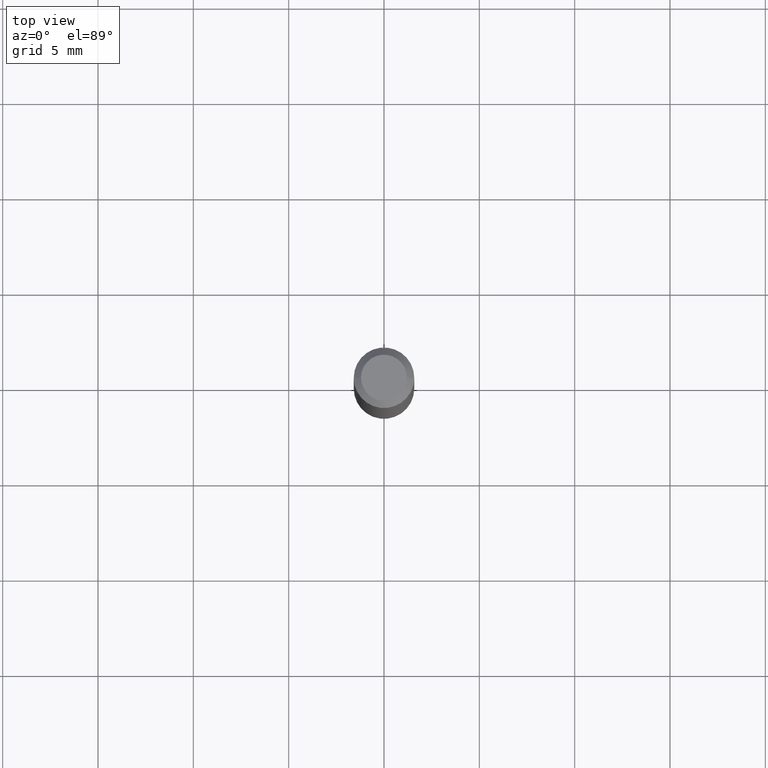
[diagram: clean part render]
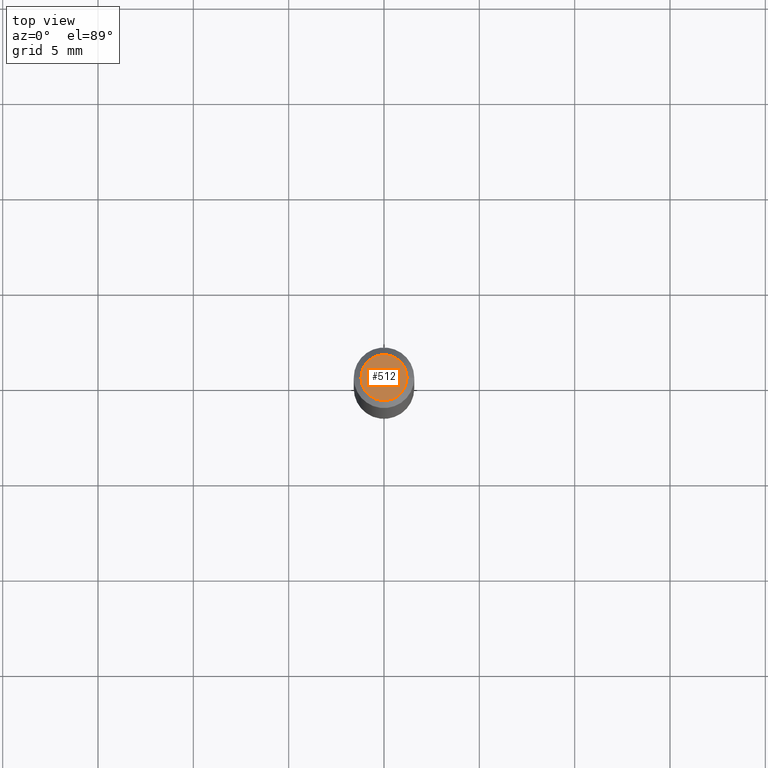
[diagram: same view with one face highlighted and labeled with its STEP entity id]
A machine part, top view. The second image highlights one B-rep face of the part: STEP entity #512.
In plain terms, the highlighted planar face has unit normal (0, -0, -1).
Its self-contained STEP definition (entity closure, byte-faithful):
#4 = CARTESIAN_POINT ( 'NONE',  ( -6.680649051745406845E-45, 9.538196290434862081E-31, 2.731847993664263218E-16 ) ) ;
#19 = PLANE ( 'NONE',  #394 ) ;
#50 = DIRECTION ( 'NONE',  ( 2.438088387897960049E-29, -3.491481338843145188E-15, -1.000000000000000000 ) ) ;
#51 = EDGE_CURVE ( 'NONE', #342, #346, #447, .T. ) ;
#53 = DIRECTION ( 'NONE',  ( 1.000000000000000000, -6.982962677686266711E-15, 4.852736867747365086E-29 ) ) ;
#59 = FACE_OUTER_BOUND ( 'NONE', #308, .T. ) ;
#81 = CARTESIAN_POINT ( 'NONE',  ( -6.680649051745406845E-45, 9.538196290434862081E-31, 2.731847993664263218E-16 ) ) ;
#189 = EDGE_CURVE ( 'NONE', #346, #342, #499, .T. ) ;
#191 = CARTESIAN_POINT ( 'NONE',  ( -0.04750000000000000749, 3.578768372314221353E-16, 2.731847993664239060E-16 ) ) ;
#200 = DIRECTION ( 'NONE',  ( -2.445468806185136597E-29, 3.491481338843145583E-15, 1.000000000000000000 ) ) ;
#221 = CARTESIAN_POINT ( 'NONE',  ( 3.316907271900976589E-16, 0.04750000000000000749, -2.925296391183627249E-17 ) ) ;
#245 = DIRECTION ( 'NONE',  ( 1.000000000000000000, -6.982962677686266711E-15, 4.852736867747365086E-29 ) ) ;
#261 = AXIS2_PLACEMENT_3D ( 'NONE', #81, #363, #53 ) ;
#268 = AXIS2_PLACEMENT_3D ( 'NONE', #4, #200, #245 ) ;
#295 = CARTESIAN_POINT ( 'NONE',  ( 0.04750000000000000749, -4.035134999187568762E-16, 2.731847993664288856E-16 ) ) ;
#308 = EDGE_LOOP ( 'NONE', ( #398, #411 ) ) ;
#342 = VERTEX_POINT ( 'NONE', #191 ) ;
#346 = VERTEX_POINT ( 'NONE', #295 ) ;
#363 = DIRECTION ( 'NONE',  ( -2.445468806185136597E-29, 3.491481338843145583E-15, 1.000000000000000000 ) ) ;
#394 = AXIS2_PLACEMENT_3D ( 'NONE', #221, #50, #491 ) ;
#398 = ORIENTED_EDGE ( 'NONE', *, *, #51, .T. ) ;
#411 = ORIENTED_EDGE ( 'NONE', *, *, #189, .T. ) ;
#447 = CIRCLE ( 'NONE', #261, 0.04750000000000000749 ) ;
#491 = DIRECTION ( 'NONE',  ( -1.000000000000000000, 6.982962677686265922E-15, -4.876176775795935793E-29 ) ) ;
#499 = CIRCLE ( 'NONE', #268, 0.04750000000000000749 ) ;
#512 = ADVANCED_FACE ( 'NONE', ( #59 ), #19, .F. ) ;